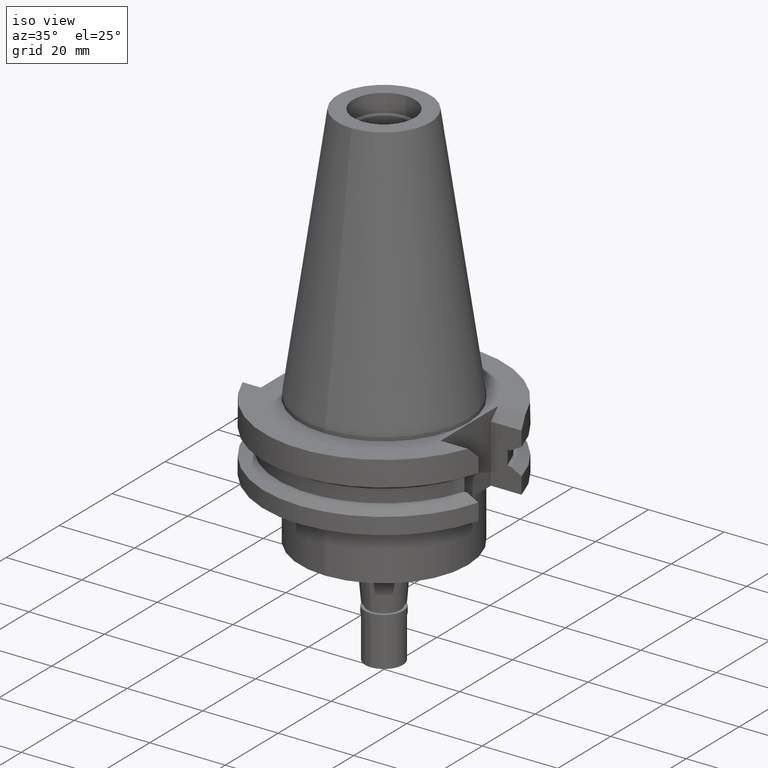
[diagram: clean part render]
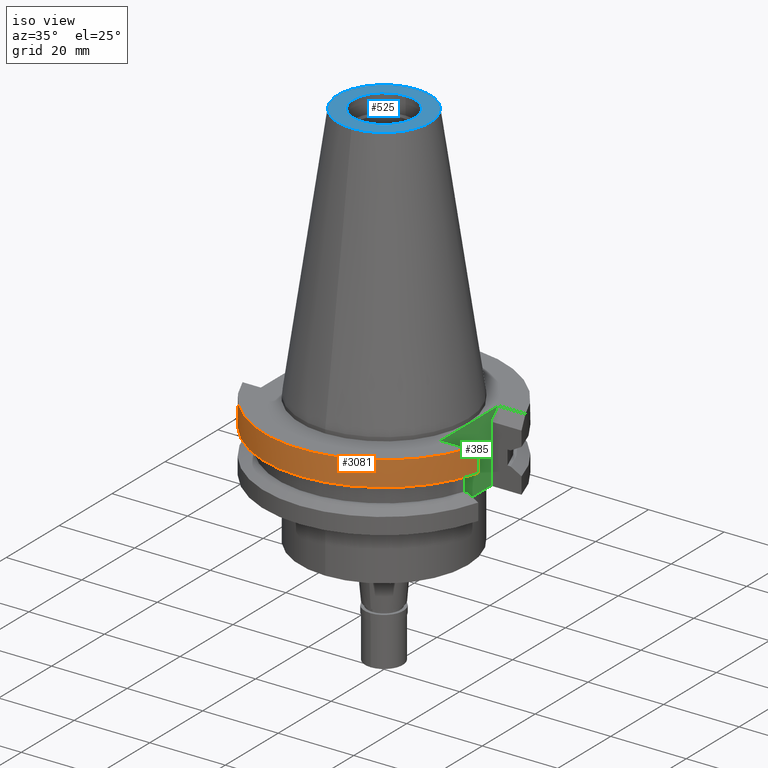
[diagram: same view with three faces highlighted in distinct colors, each labeled with its STEP entity id]
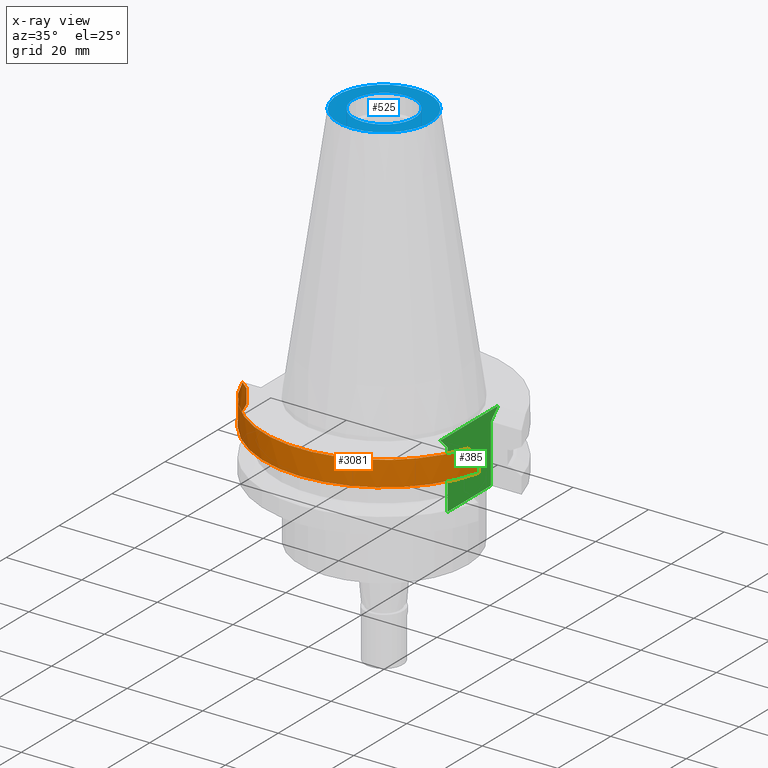
[diagram: x-ray of the same camera — body ghosted, the three highlighted faces saturated]
A machine part, iso view with three faces highlighted in distinct colors.
The next image is the same camera in x-ray (body ghosted, the three faces saturated) — at least one of them is partly hidden behind the body in this view.
Their STEP definitions:

[orange] entity #3081 — the highlighted cylindrical surface (partial cylindrical patch) has radius 31.75 mm, axis along (0, 0, -1).
#26 = VECTOR ( 'NONE', #3030, 1000.000000000000114 ) ;
#32 = CARTESIAN_POINT ( 'NONE',  ( -30.67550165988999922, -8.189999872648000334, -7.601334368991000012 ) ) ;
#47 = CIRCLE ( 'NONE', #1841, 31.74999999999998579 ) ;
#71 = VECTOR ( 'NONE', #3202, 1000.000000000000114 ) ;
#77 = EDGE_CURVE ( 'NONE', #2498, #933, #463, .T. ) ;
#193 = DIRECTION ( 'NONE',  ( 0.0000000000000000000, 0.0000000000000000000, -1.000000000000000000 ) ) ;
#231 = CARTESIAN_POINT ( 'NONE',  ( 0.0000000000000000000, 1.121722380078999823E-14, -7.601333230925999551 ) ) ;
#246 = CARTESIAN_POINT ( 'NONE',  ( 30.43183015827552396, -9.102667216255303728, -2.787332783744696840 ) ) ;
#268 = AXIS2_PLACEMENT_3D ( 'NONE', #1495, #2156, #1966 ) ;
#463 = B_SPLINE_CURVE_WITH_KNOTS ( 'NONE', 3,
 ( #722, #2963, #246, #2443 ),
 .UNSPECIFIED., .F., .F.,
 ( 4, 4 ),
 ( 0.0000000000000000000, 1.000000000000000000 ),
 .UNSPECIFIED. ) ;
#483 = DIRECTION ( 'NONE',  ( 0.0000000000000000000, 0.0000000000000000000, 1.000000000000000000 ) ) ;
#683 = CYLINDRICAL_SURFACE ( 'NONE', #268, 31.75000000000000000 ) ;
#692 = ORIENTED_EDGE ( 'NONE', *, *, #1668, .F. ) ;
#722 = CARTESIAN_POINT ( 'NONE',  ( 29.82399034335000110, -10.89000000000000057, -1.000000000001000089 ) ) ;
#727 = DIRECTION ( 'NONE',  ( -0.9661575315241073270, -0.2579527559055020958, 0.0000000000000000000 ) ) ;
#748 = EDGE_CURVE ( 'NONE', #1757, #2992, #2696, .T. ) ;
#791 = CIRCLE ( 'NONE', #1716, 31.75000000000000000 ) ;
#930 = CARTESIAN_POINT ( 'NONE',  ( -30.14799306409551960, -10.00266721625513888, -1.887332783744861908 ) ) ;
#931 = CARTESIAN_POINT ( 'NONE',  ( -30.67550162588999640, -8.189999999999999503, -3.700000000000000178 ) ) ;
#933 = VERTEX_POINT ( 'NONE', #3044 ) ;
#980 = FACE_OUTER_BOUND ( 'NONE', #1361, .T. ) ;
#1355 = B_SPLINE_CURVE_WITH_KNOTS ( 'NONE', 3,
 ( #1427, #1933, #930, #2404 ),
 .UNSPECIFIED., .F., .F.,
 ( 4, 4 ),
 ( 0.0000000000000000000, 1.000000000000000000 ),
 .UNSPECIFIED. ) ;
#1361 = EDGE_LOOP ( 'NONE', ( #3109, #1917, #2930, #2617, #2312, #692 ) ) ;
#1362 = VERTEX_POINT ( 'NONE', #2638 ) ;
#1389 = EDGE_CURVE ( 'NONE', #2992, #1362, #1355, .T. ) ;
#1427 = CARTESIAN_POINT ( 'NONE',  ( -30.67550162588999640, -8.189999999999999503, -3.700000000000000178 ) ) ;
#1494 = CARTESIAN_POINT ( 'NONE',  ( 30.67550162588999640, -8.189999999999999503, -3.700000000000000178 ) ) ;
#1495 = CARTESIAN_POINT ( 'NONE',  ( 0.0000000000000000000, 2.138876250880999822E-14, 74.65250000000000341 ) ) ;
#1621 = CARTESIAN_POINT ( 'NONE',  ( 30.67550146353999807, -8.190000608063000342, -7.601327796919000512 ) ) ;
#1668 = EDGE_CURVE ( 'NONE', #933, #2910, #2252, .T. ) ;
#1675 = CARTESIAN_POINT ( 'NONE',  ( 29.82399034335000110, -10.89000000000000057, -1.000000000001000089 ) ) ;
#1716 = AXIS2_PLACEMENT_3D ( 'NONE', #2616, #193, #3088 ) ;
#1757 = VERTEX_POINT ( 'NONE', #1852 ) ;
#1841 = AXIS2_PLACEMENT_3D ( 'NONE', #231, #483, #727 ) ;
#1852 = CARTESIAN_POINT ( 'NONE',  ( -30.67550165988999922, -8.189999872648000334, -7.601334368991000012 ) ) ;
#1906 = EDGE_CURVE ( 'NONE', #1757, #2910, #47, .T. ) ;
#1917 = ORIENTED_EDGE ( 'NONE', *, *, #2299, .T. ) ;
#1933 = CARTESIAN_POINT ( 'NONE',  ( -30.43183015827552040, -9.102667216255303728, -2.787332783744696840 ) ) ;
#1966 = DIRECTION ( 'NONE',  ( 0.0000000000000000000, -1.000000000000000000, 0.0000000000000000000 ) ) ;
#2156 = DIRECTION ( 'NONE',  ( 0.0000000000000000000, 0.0000000000000000000, -1.000000000000000000 ) ) ;
#2252 = LINE ( 'NONE', #1494, #26 ) ;
#2299 = EDGE_CURVE ( 'NONE', #2498, #1362, #791, .T. ) ;
#2312 = ORIENTED_EDGE ( 'NONE', *, *, #1906, .T. ) ;
#2404 = CARTESIAN_POINT ( 'NONE',  ( -29.82399034335000110, -10.89000000000000057, -1.000000000001000089 ) ) ;
#2443 = CARTESIAN_POINT ( 'NONE',  ( 30.67550162588999640, -8.189999999999999503, -3.700000000000000178 ) ) ;
#2498 = VERTEX_POINT ( 'NONE', #1675 ) ;
#2616 = CARTESIAN_POINT ( 'NONE',  ( 0.0000000000000000000, 2.138876250880999822E-14, -1.000000000000000000 ) ) ;
#2617 = ORIENTED_EDGE ( 'NONE', *, *, #748, .F. ) ;
#2638 = CARTESIAN_POINT ( 'NONE',  ( -29.82399034335000110, -10.89000000000000057, -1.000000000001000089 ) ) ;
#2696 = LINE ( 'NONE', #32, #71 ) ;
#2910 = VERTEX_POINT ( 'NONE', #1621 ) ;
#2930 = ORIENTED_EDGE ( 'NONE', *, *, #1389, .F. ) ;
#2963 = CARTESIAN_POINT ( 'NONE',  ( 30.14799306409552671, -10.00266721625513888, -1.887332783744861908 ) ) ;
#2992 = VERTEX_POINT ( 'NONE', #931 ) ;
#3030 = DIRECTION ( 'NONE',  ( -4.161283379655944490E-08, -1.558605683678980038E-07, -0.9999999999999868994 ) ) ;
#3044 = CARTESIAN_POINT ( 'NONE',  ( 30.67550162588999640, -8.189999999999999503, -3.700000000000000178 ) ) ;
#3081 = ADVANCED_FACE ( 'NONE', ( #980 ), #683, .T. ) ;
#3088 = DIRECTION ( 'NONE',  ( 0.0000000000000000000, -1.000000000000000000, 0.0000000000000000000 ) ) ;
#3109 = ORIENTED_EDGE ( 'NONE', *, *, #77, .F. ) ;
#3202 = DIRECTION ( 'NONE',  ( 8.715450288413995716E-09, -3.264312172962997743E-08, 0.9999999999999994449 ) ) ;

[blue] entity #525 — the highlighted planar face has unit normal (0, 0, -1).
#112 = CIRCLE ( 'NONE', #1767, 8.160000000000000142 ) ;
#186 = EDGE_LOOP ( 'NONE', ( #2424, #2161 ) ) ;
#189 = CARTESIAN_POINT ( 'NONE',  ( 0.0000000000000000000, -8.160000000000000142, 68.25000000000000000 ) ) ;
#250 = DIRECTION ( 'NONE',  ( 0.0000000000000000000, -1.000000000000000000, 0.0000000000000000000 ) ) ;
#326 = DIRECTION ( 'NONE',  ( 0.0000000000000000000, 1.000000000000000000, 0.0000000000000000000 ) ) ;
#357 = EDGE_CURVE ( 'NONE', #380, #2942, #1650, .T. ) ;
#380 = VERTEX_POINT ( 'NONE', #2772 ) ;
#400 = ORIENTED_EDGE ( 'NONE', *, *, #542, .F. ) ;
#404 = PLANE ( 'NONE',  #1040 ) ;
#525 = ADVANCED_FACE ( 'NONE', ( #614, #3157 ), #404, .F. ) ;
#542 = EDGE_CURVE ( 'NONE', #1406, #1894, #2785, .T. ) ;
#562 = AXIS2_PLACEMENT_3D ( 'NONE', #1553, #1788, #326 ) ;
#614 = FACE_OUTER_BOUND ( 'NONE', #838, .T. ) ;
#661 = DIRECTION ( 'NONE',  ( 0.0000000000000000000, 0.0000000000000000000, 1.000000000000000000 ) ) ;
#686 = DIRECTION ( 'NONE',  ( 0.0000000000000000000, 1.000000000000000000, 0.0000000000000000000 ) ) ;
#734 = DIRECTION ( 'NONE',  ( 0.0000000000000000000, 0.0000000000000000000, -1.000000000000000000 ) ) ;
#838 = EDGE_LOOP ( 'NONE', ( #400, #1324 ) ) ;
#875 = DIRECTION ( 'NONE',  ( 0.0000000000000000000, -1.000000000000000000, 0.0000000000000000000 ) ) ;
#881 = CARTESIAN_POINT ( 'NONE',  ( 0.0000000000000000000, 1.642557519355999895E-14, 68.25000000000000000 ) ) ;
#932 = CARTESIAN_POINT ( 'NONE',  ( 0.0000000000000000000, 2.060468239564999825E-14, 68.25000000000000000 ) ) ;
#1038 = EDGE_CURVE ( 'NONE', #2942, #380, #112, .T. ) ;
#1040 = AXIS2_PLACEMENT_3D ( 'NONE', #932, #1603, #2596 ) ;
#1324 = ORIENTED_EDGE ( 'NONE', *, *, #1342, .F. ) ;
#1342 = EDGE_CURVE ( 'NONE', #1894, #1406, #3197, .T. ) ;
#1406 = VERTEX_POINT ( 'NONE', #2694 ) ;
#1449 = AXIS2_PLACEMENT_3D ( 'NONE', #881, #2615, #686 ) ;
#1553 = CARTESIAN_POINT ( 'NONE',  ( 0.0000000000000000000, 2.138876250880999822E-14, 68.25000000000000000 ) ) ;
#1603 = DIRECTION ( 'NONE',  ( 0.0000000000000000000, 0.0000000000000000000, -1.000000000000000000 ) ) ;
#1650 = CIRCLE ( 'NONE', #562, 8.160000000000000142 ) ;
#1767 = AXIS2_PLACEMENT_3D ( 'NONE', #1909, #661, #875 ) ;
#1788 = DIRECTION ( 'NONE',  ( 0.0000000000000000000, 0.0000000000000000000, 1.000000000000000000 ) ) ;
#1790 = AXIS2_PLACEMENT_3D ( 'NONE', #3190, #734, #250 ) ;
#1894 = VERTEX_POINT ( 'NONE', #1907 ) ;
#1907 = CARTESIAN_POINT ( 'NONE',  ( 0.0000000000000000000, -12.27186888070000137, 68.25000000000000000 ) ) ;
#1909 = CARTESIAN_POINT ( 'NONE',  ( 0.0000000000000000000, 2.138876250880999822E-14, 68.25000000000000000 ) ) ;
#2161 = ORIENTED_EDGE ( 'NONE', *, *, #1038, .F. ) ;
#2424 = ORIENTED_EDGE ( 'NONE', *, *, #357, .F. ) ;
#2596 = DIRECTION ( 'NONE',  ( 0.0000000000000000000, -1.000000000000000000, 0.0000000000000000000 ) ) ;
#2615 = DIRECTION ( 'NONE',  ( 0.0000000000000000000, 0.0000000000000000000, -1.000000000000000000 ) ) ;
#2694 = CARTESIAN_POINT ( 'NONE',  ( 0.0000000000000000000, 12.27186888070000137, 68.25000000000000000 ) ) ;
#2772 = CARTESIAN_POINT ( 'NONE',  ( 0.0000000000000000000, 8.160000000000000142, 68.25000000000000000 ) ) ;
#2785 = CIRCLE ( 'NONE', #1449, 12.27186888070000137 ) ;
#2942 = VERTEX_POINT ( 'NONE', #189 ) ;
#3157 = FACE_BOUND ( 'NONE', #186, .T. ) ;
#3190 = CARTESIAN_POINT ( 'NONE',  ( 0.0000000000000000000, 1.642557519355999895E-14, 68.25000000000000000 ) ) ;
#3197 = CIRCLE ( 'NONE', #1790, 12.27186888070000137 ) ;

[green] entity #385 — the highlighted planar face has unit normal (1, 0, 0).
#40 = VECTOR ( 'NONE', #2956, 1000.000000000000000 ) ;
#142 = ORIENTED_EDGE ( 'NONE', *, *, #1338, .F. ) ;
#155 = LINE ( 'NONE', #2872, #1135 ) ;
#157 = ORIENTED_EDGE ( 'NONE', *, *, #2214, .F. ) ;
#294 = VERTEX_POINT ( 'NONE', #2055 ) ;
#385 = ADVANCED_FACE ( 'NONE', ( #2831 ), #2138, .T. ) ;
#467 = ORIENTED_EDGE ( 'NONE', *, *, #558, .F. ) ;
#491 = CARTESIAN_POINT ( 'NONE',  ( 22.57000000000000028, 8.189999999999999503, -19.05000000000000071 ) ) ;
#520 = EDGE_CURVE ( 'NONE', #662, #634, #866, .T. ) ;
#558 = EDGE_CURVE ( 'NONE', #593, #1673, #155, .T. ) ;
#593 = VERTEX_POINT ( 'NONE', #1686 ) ;
#634 = VERTEX_POINT ( 'NONE', #1752 ) ;
#648 = VECTOR ( 'NONE', #947, 1000.000000000000000 ) ;
#649 = DIRECTION ( 'NONE',  ( 0.0000000000000000000, -0.7071067811865474617, 0.7071067811865474617 ) ) ;
#662 = VERTEX_POINT ( 'NONE', #2945 ) ;
#664 = LINE ( 'NONE', #491, #40 ) ;
#866 = LINE ( 'NONE', #2157, #1860 ) ;
#929 = EDGE_LOOP ( 'NONE', ( #157, #2923, #1799, #467, #1815, #142 ) ) ;
#947 = DIRECTION ( 'NONE',  ( 0.0000000000000000000, 0.0000000000000000000, 1.000000000000000000 ) ) ;
#1048 = CARTESIAN_POINT ( 'NONE',  ( 22.57000000000000028, -10.89000000000000057, -1.000000000000000000 ) ) ;
#1135 = VECTOR ( 'NONE', #649, 1000.000000000000114 ) ;
#1149 = DIRECTION ( 'NONE',  ( 1.000000000000000000, 0.0000000000000000000, 0.0000000000000000000 ) ) ;
#1217 = LINE ( 'NONE', #2475, #1451 ) ;
#1242 = CARTESIAN_POINT ( 'NONE',  ( 22.57000000000000028, 8.189999999999999503, -3.700000000000000178 ) ) ;
#1320 = EDGE_CURVE ( 'NONE', #294, #593, #2460, .T. ) ;
#1338 = EDGE_CURVE ( 'NONE', #2014, #294, #664, .T. ) ;
#1451 = VECTOR ( 'NONE', #1952, 1000.000000000000000 ) ;
#1622 = DIRECTION ( 'NONE',  ( 0.0000000000000000000, -0.7071067811865474617, -0.7071067811865474617 ) ) ;
#1673 = VERTEX_POINT ( 'NONE', #1048 ) ;
#1686 = CARTESIAN_POINT ( 'NONE',  ( 22.57000000000000028, -8.189999999999999503, -3.700000000000000178 ) ) ;
#1752 = CARTESIAN_POINT ( 'NONE',  ( 22.57000000000000028, 8.189999999999999503, -3.700000000000000178 ) ) ;
#1779 = LINE ( 'NONE', #1242, #2702 ) ;
#1799 = ORIENTED_EDGE ( 'NONE', *, *, #3022, .T. ) ;
#1815 = ORIENTED_EDGE ( 'NONE', *, *, #1320, .F. ) ;
#1848 = DIRECTION ( 'NONE',  ( 0.0000000000000000000, 1.000000000000000000, 0.0000000000000000000 ) ) ;
#1860 = VECTOR ( 'NONE', #1622, 1000.000000000000114 ) ;
#1952 = DIRECTION ( 'NONE',  ( 0.0000000000000000000, -1.000000000000000000, 0.0000000000000000000 ) ) ;
#1959 = CARTESIAN_POINT ( 'NONE',  ( 22.57000000000000028, 8.189999999999999503, -19.05000000000000071 ) ) ;
#1995 = DIRECTION ( 'NONE',  ( 0.0000000000000000000, 0.0000000000000000000, -1.000000000000000000 ) ) ;
#2014 = VERTEX_POINT ( 'NONE', #1959 ) ;
#2055 = CARTESIAN_POINT ( 'NONE',  ( 22.57000000000000028, -8.189999999999999503, -19.05000000000000071 ) ) ;
#2120 = CARTESIAN_POINT ( 'NONE',  ( 22.57000000000000028, 0.0000000000000000000, 0.0000000000000000000 ) ) ;
#2138 = PLANE ( 'NONE',  #2439 ) ;
#2157 = CARTESIAN_POINT ( 'NONE',  ( 22.57000000000000028, 10.89000000000000057, -1.000000000000000000 ) ) ;
#2172 = CARTESIAN_POINT ( 'NONE',  ( 22.57000000000000028, -8.189999999999999503, -19.05000000000000071 ) ) ;
#2214 = EDGE_CURVE ( 'NONE', #634, #2014, #1779, .T. ) ;
#2439 = AXIS2_PLACEMENT_3D ( 'NONE', #2120, #1149, #1848 ) ;
#2460 = LINE ( 'NONE', #2172, #648 ) ;
#2475 = CARTESIAN_POINT ( 'NONE',  ( 22.57000000000000028, 10.89000000000000057, -1.000000000000000000 ) ) ;
#2702 = VECTOR ( 'NONE', #1995, 1000.000000000000000 ) ;
#2831 = FACE_OUTER_BOUND ( 'NONE', #929, .T. ) ;
#2872 = CARTESIAN_POINT ( 'NONE',  ( 22.57000000000000028, -8.189999999999999503, -3.700000000000000178 ) ) ;
#2923 = ORIENTED_EDGE ( 'NONE', *, *, #520, .F. ) ;
#2945 = CARTESIAN_POINT ( 'NONE',  ( 22.57000000000000028, 10.89000000000000057, -1.000000000000000000 ) ) ;
#2956 = DIRECTION ( 'NONE',  ( 0.0000000000000000000, -1.000000000000000000, 0.0000000000000000000 ) ) ;
#3022 = EDGE_CURVE ( 'NONE', #662, #1673, #1217, .T. ) ;